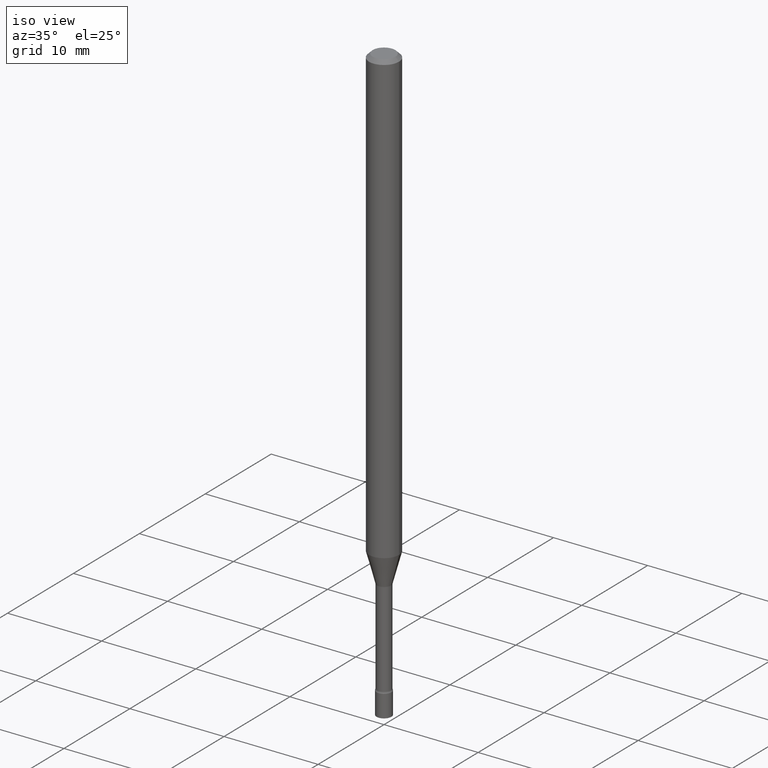
[diagram: clean part render]
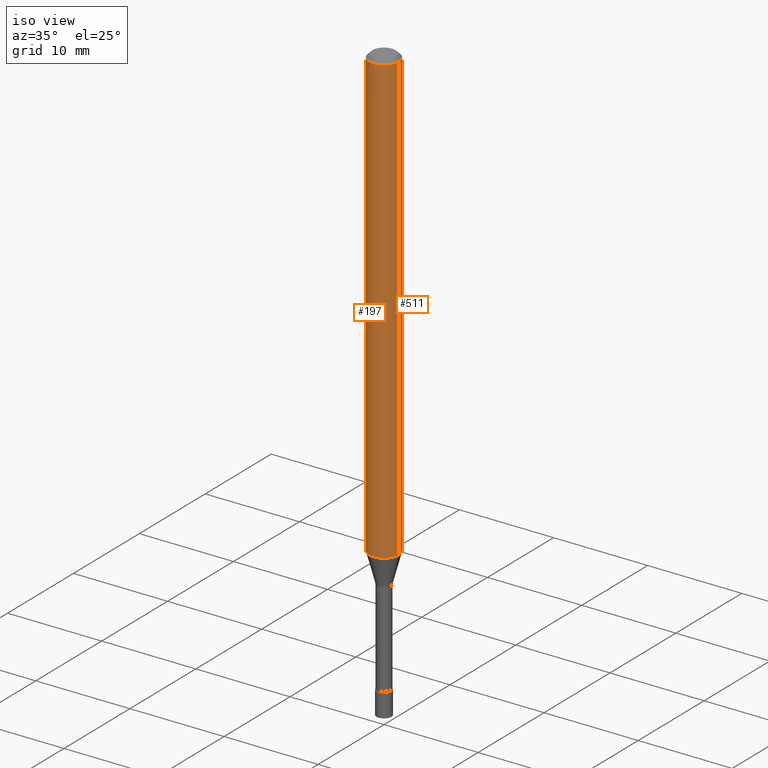
[diagram: same view with one multi-face feature highlighted, each face labeled with its STEP entity id]
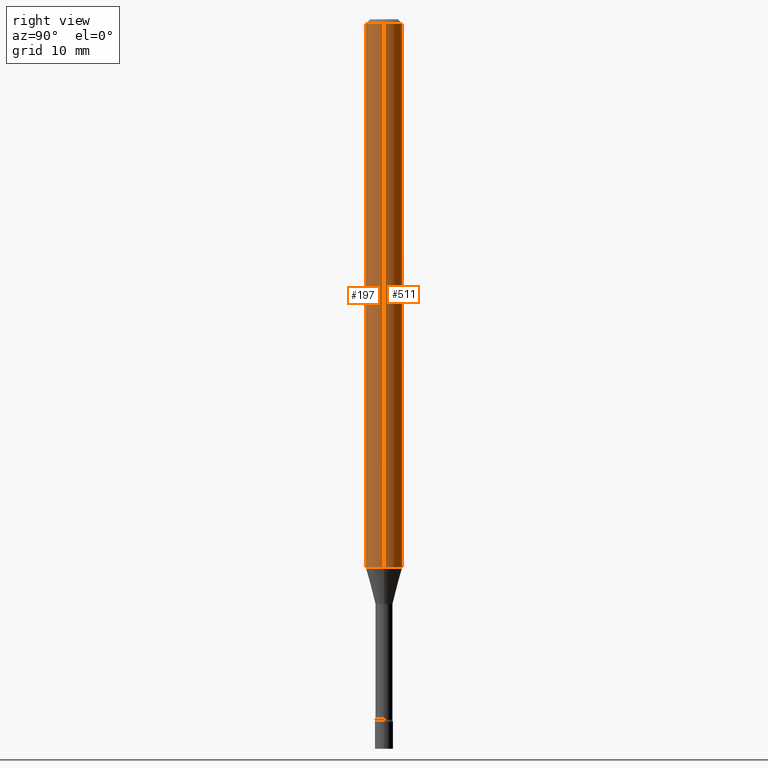
[diagram: same view with one multi-face feature highlighted, each face labeled with its STEP entity id]
A machine part, iso view. The highlighted faces form ONE feature: a constant-radius fillet chain: 2 tangent blend faces with common blend radius 1.5875 mm. The faces share edges in the B-rep.
A second angle (right view) of the same feature is appended — it is thin or edge-on in the first view.
Their STEP definitions:
[1] entity #511 (Cylinder):
#2 = DIRECTION ( 'NONE',  ( 1.000000000000000000, -6.982962677686266711E-15, 0.000000000000000000 ) ) ;
#5 = ORIENTED_EDGE ( 'NONE', *, *, #244, .T. ) ;
#14 = DIRECTION ( 'NONE',  ( -2.445468806185136877E-29, 3.491481338843145188E-15, 1.000000000000000000 ) ) ;
#40 = CARTESIAN_POINT ( 'NONE',  ( 0.06250000000000000000, -6.998800405626513309E-15, -1.879536105567578552 ) ) ;
#55 = VERTEX_POINT ( 'NONE', #354 ) ;
#63 = CARTESIAN_POINT ( 'NONE',  ( 4.596346916264206982E-29, -6.562365238271120851E-15, -1.879536105567578552 ) ) ;
#64 = CIRCLE ( 'NONE', #85, 0.06250000000000000000 ) ;
#67 = VERTEX_POINT ( 'NONE', #346 ) ;
#85 = AXIS2_PLACEMENT_3D ( 'NONE', #204, #336, #2 ) ;
#106 = CARTESIAN_POINT ( 'NONE',  ( -0.06250000000000000000, 4.440892098500626162E-16, -3.074334431409316114E-30 ) ) ;
#137 = VECTOR ( 'NONE', #14, 39.37007874015748143 ) ;
#161 = VERTEX_POINT ( 'NONE', #178 ) ;
#175 = LINE ( 'NONE', #106, #396 ) ;
#178 = CARTESIAN_POINT ( 'NONE',  ( 0.06250000000000000000, -4.888073874380389458E-16, -0.01500000000000003067 ) ) ;
#182 = LINE ( 'NONE', #377, #137 ) ;
#201 = EDGE_CURVE ( 'NONE', #454, #55, #302, .T. ) ;
#204 = CARTESIAN_POINT ( 'NONE',  ( 3.668203209277712094E-31, -5.237222008264728876E-17, -0.01500000000000003067 ) ) ;
#217 = DIRECTION ( 'NONE',  ( 1.000000000000000000, -6.982962677686262766E-15, 0.000000000000000000 ) ) ;
#219 = ORIENTED_EDGE ( 'NONE', *, *, #236, .F. ) ;
#221 = DIRECTION ( 'NONE',  ( -2.445468806185136597E-29, 3.491481338843145583E-15, 1.000000000000000000 ) ) ;
#222 = EDGE_LOOP ( 'NONE', ( #501, #5, #419, #219 ) ) ;
#236 = EDGE_CURVE ( 'NONE', #454, #161, #182, .T. ) ;
#244 = EDGE_CURVE ( 'NONE', #55, #67, #175, .T. ) ;
#265 = CYLINDRICAL_SURFACE ( 'NONE', #446, 0.06250000000000000000 ) ;
#272 = DIRECTION ( 'NONE',  ( -2.445468806185136877E-29, 3.491481338843145188E-15, 1.000000000000000000 ) ) ;
#302 = CIRCLE ( 'NONE', #356, 0.06250000000000000000 ) ;
#328 = EDGE_CURVE ( 'NONE', #161, #67, #64, .T. ) ;
#336 = DIRECTION ( 'NONE',  ( -2.445468806185136597E-29, 3.491481338843145583E-15, 1.000000000000000000 ) ) ;
#346 = CARTESIAN_POINT ( 'NONE',  ( -0.06250000000000000000, -2.863279519326821546E-15, -0.01500000000000003067 ) ) ;
#354 = CARTESIAN_POINT ( 'NONE',  ( -0.06250000000000000000, -6.118276028421058235E-15, -1.879536105567578552 ) ) ;
#356 = AXIS2_PLACEMENT_3D ( 'NONE', #63, #387, #217 ) ;
#377 = CARTESIAN_POINT ( 'NONE',  ( 0.06250000000000000000, -4.364351673553916694E-16, 3.047610484872459871E-30 ) ) ;
#382 = FACE_OUTER_BOUND ( 'NONE', #222, .T. ) ;
#387 = DIRECTION ( 'NONE',  ( -2.445468806185136597E-29, 3.491481338843145583E-15, 1.000000000000000000 ) ) ;
#396 = VECTOR ( 'NONE', #272, 39.37007874015748143 ) ;
#419 = ORIENTED_EDGE ( 'NONE', *, *, #328, .F. ) ;
#446 = AXIS2_PLACEMENT_3D ( 'NONE', #504, #221, #463 ) ;
#454 = VERTEX_POINT ( 'NONE', #40 ) ;
#463 = DIRECTION ( 'NONE',  ( 1.000000000000000000, -6.982962677686266711E-15, 4.876176775795935793E-29 ) ) ;
#501 = ORIENTED_EDGE ( 'NONE', *, *, #201, .T. ) ;
#504 = CARTESIAN_POINT ( 'NONE',  ( 0.000000000000000000, 0.000000000000000000, 0.000000000000000000 ) ) ;
#511 = ADVANCED_FACE ( 'NONE', ( #382 ), #265, .T. ) ;
[2] entity #197 (Cylinder):
#14 = DIRECTION ( 'NONE',  ( -2.445468806185136877E-29, 3.491481338843145188E-15, 1.000000000000000000 ) ) ;
#40 = CARTESIAN_POINT ( 'NONE',  ( 0.06250000000000000000, -6.998800405626513309E-15, -1.879536105567578552 ) ) ;
#55 = VERTEX_POINT ( 'NONE', #354 ) ;
#65 = CIRCLE ( 'NONE', #259, 0.06250000000000000000 ) ;
#67 = VERTEX_POINT ( 'NONE', #346 ) ;
#77 = EDGE_CURVE ( 'NONE', #55, #454, #65, .T. ) ;
#103 = DIRECTION ( 'NONE',  ( 1.000000000000000000, -6.982962677686266711E-15, 4.876176775795935793E-29 ) ) ;
#106 = CARTESIAN_POINT ( 'NONE',  ( -0.06250000000000000000, 4.440892098500626162E-16, -3.074334431409316114E-30 ) ) ;
#109 = DIRECTION ( 'NONE',  ( -2.445468806185136597E-29, 3.491481338843145583E-15, 1.000000000000000000 ) ) ;
#136 = DIRECTION ( 'NONE',  ( -2.445468806185136597E-29, 3.491481338843145583E-15, 1.000000000000000000 ) ) ;
#137 = VECTOR ( 'NONE', #14, 39.37007874015748143 ) ;
#142 = CYLINDRICAL_SURFACE ( 'NONE', #189, 0.06250000000000000000 ) ;
#154 = ORIENTED_EDGE ( 'NONE', *, *, #244, .F. ) ;
#161 = VERTEX_POINT ( 'NONE', #178 ) ;
#175 = LINE ( 'NONE', #106, #396 ) ;
#176 = EDGE_CURVE ( 'NONE', #67, #161, #424, .T. ) ;
#178 = CARTESIAN_POINT ( 'NONE',  ( 0.06250000000000000000, -4.888073874380389458E-16, -0.01500000000000003067 ) ) ;
#182 = LINE ( 'NONE', #377, #137 ) ;
#189 = AXIS2_PLACEMENT_3D ( 'NONE', #457, #136, #103 ) ;
#197 = ADVANCED_FACE ( 'NONE', ( #220 ), #142, .T. ) ;
#207 = ORIENTED_EDGE ( 'NONE', *, *, #77, .T. ) ;
#220 = FACE_OUTER_BOUND ( 'NONE', #373, .T. ) ;
#236 = EDGE_CURVE ( 'NONE', #454, #161, #182, .T. ) ;
#244 = EDGE_CURVE ( 'NONE', #55, #67, #175, .T. ) ;
#259 = AXIS2_PLACEMENT_3D ( 'NONE', #423, #109, #275 ) ;
#272 = DIRECTION ( 'NONE',  ( -2.445468806185136877E-29, 3.491481338843145188E-15, 1.000000000000000000 ) ) ;
#275 = DIRECTION ( 'NONE',  ( 1.000000000000000000, -6.982962677686262766E-15, 0.000000000000000000 ) ) ;
#284 = AXIS2_PLACEMENT_3D ( 'NONE', #309, #311, #428 ) ;
#305 = ORIENTED_EDGE ( 'NONE', *, *, #176, .F. ) ;
#309 = CARTESIAN_POINT ( 'NONE',  ( 3.668203209277712094E-31, -5.237222008264728876E-17, -0.01500000000000003067 ) ) ;
#311 = DIRECTION ( 'NONE',  ( -2.445468806185136597E-29, 3.491481338843145583E-15, 1.000000000000000000 ) ) ;
#346 = CARTESIAN_POINT ( 'NONE',  ( -0.06250000000000000000, -2.863279519326821546E-15, -0.01500000000000003067 ) ) ;
#354 = CARTESIAN_POINT ( 'NONE',  ( -0.06250000000000000000, -6.118276028421058235E-15, -1.879536105567578552 ) ) ;
#373 = EDGE_LOOP ( 'NONE', ( #154, #207, #462, #305 ) ) ;
#377 = CARTESIAN_POINT ( 'NONE',  ( 0.06250000000000000000, -4.364351673553916694E-16, 3.047610484872459871E-30 ) ) ;
#396 = VECTOR ( 'NONE', #272, 39.37007874015748143 ) ;
#423 = CARTESIAN_POINT ( 'NONE',  ( 4.596346916264206982E-29, -6.562365238271120851E-15, -1.879536105567578552 ) ) ;
#424 = CIRCLE ( 'NONE', #284, 0.06250000000000000000 ) ;
#428 = DIRECTION ( 'NONE',  ( 1.000000000000000000, -6.982962677686266711E-15, 0.000000000000000000 ) ) ;
#454 = VERTEX_POINT ( 'NONE', #40 ) ;
#457 = CARTESIAN_POINT ( 'NONE',  ( 0.000000000000000000, 0.000000000000000000, 0.000000000000000000 ) ) ;
#462 = ORIENTED_EDGE ( 'NONE', *, *, #236, .T. ) ;